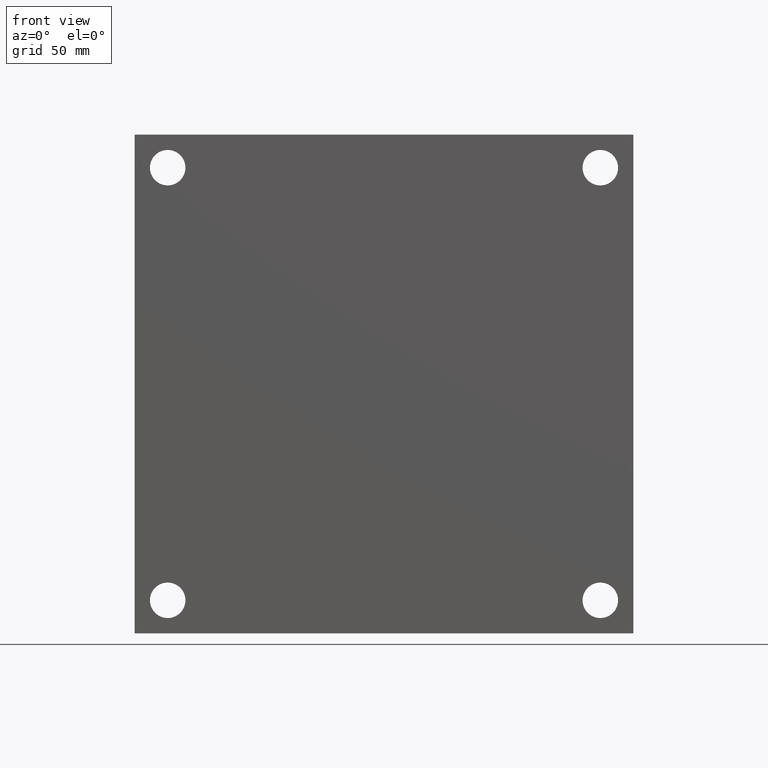
[diagram: clean part render]
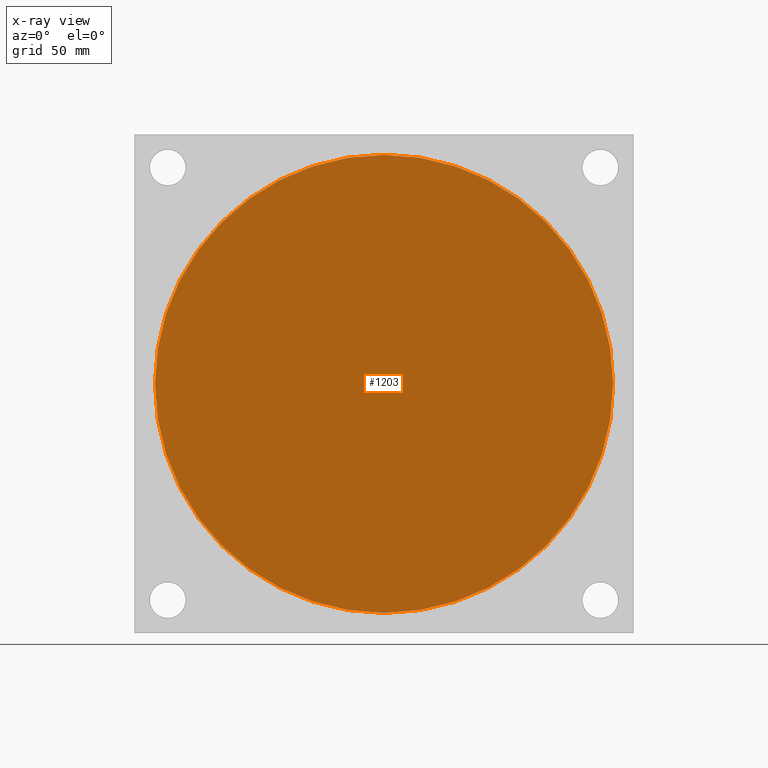
[diagram: x-ray — body ghosted, one internal face saturated and labeled with its STEP entity id]
A machine part, front view, then the same camera in x-ray: the body is ghosted and one INTERNAL B-rep face — a face not visible from any outside direction — is saturated and labeled: STEP entity #1203.
In plain terms, the highlighted planar face has unit normal (0, 1, 0).
Its self-contained STEP definition (entity closure, byte-faithful):
#101 = CIRCLE ( 'NONE', #1091, 5.625000000000000000 ) ;
#134 = EDGE_CURVE ( 'NONE', #258, #1445, #1065, .T. ) ;
#214 = CARTESIAN_POINT ( 'NONE',  ( -1.231999913475563700E-016, 2.955000000000001800, 0.0000000000000000000 ) ) ;
#258 = VERTEX_POINT ( 'NONE', #1572 ) ;
#304 = CARTESIAN_POINT ( 'NONE',  ( -5.625000000000000000, 2.955000000000002700, 6.888638245203861900E-016 ) ) ;
#330 = FACE_OUTER_BOUND ( 'NONE', #856, .T. ) ;
#405 = ORIENTED_EDGE ( 'NONE', *, *, #134, .F. ) ;
#437 = AXIS2_PLACEMENT_3D ( 'NONE', #894, #1227, #1116 ) ;
#454 = AXIS2_PLACEMENT_3D ( 'NONE', #214, #1439, #1178 ) ;
#631 = PLANE ( 'NONE',  #437 ) ;
#856 = EDGE_LOOP ( 'NONE', ( #405, #1321 ) ) ;
#894 = CARTESIAN_POINT ( 'NONE',  ( 5.625000000000000000, 2.955000000000000100, 0.0000000000000000000 ) ) ;
#1065 = CIRCLE ( 'NONE', #454, 5.625000000000000000 ) ;
#1091 = AXIS2_PLACEMENT_3D ( 'NONE', #1130, #1477, #1242 ) ;
#1116 = DIRECTION ( 'NONE',  ( -1.000000000000000000, 2.258269631761038600E-016, 0.0000000000000000000 ) ) ;
#1130 = CARTESIAN_POINT ( 'NONE',  ( -1.231999913475563700E-016, 2.955000000000001800, 0.0000000000000000000 ) ) ;
#1168 = EDGE_CURVE ( 'NONE', #1445, #258, #101, .T. ) ;
#1178 = DIRECTION ( 'NONE',  ( 1.000000000000000000, -1.942647462161253800E-016, 0.0000000000000000000 ) ) ;
#1203 = ADVANCED_FACE ( 'NONE', ( #330 ), #631, .T. ) ;
#1227 = DIRECTION ( 'NONE',  ( 2.258269631761038600E-016, 1.000000000000000000, 0.0000000000000000000 ) ) ;
#1242 = DIRECTION ( 'NONE',  ( 1.000000000000000000, -1.942647462161253800E-016, 0.0000000000000000000 ) ) ;
#1321 = ORIENTED_EDGE ( 'NONE', *, *, #1168, .F. ) ;
#1439 = DIRECTION ( 'NONE',  ( -2.258269631761038600E-016, -1.000000000000000000, -0.0000000000000000000 ) ) ;
#1445 = VERTEX_POINT ( 'NONE', #304 ) ;
#1477 = DIRECTION ( 'NONE',  ( -2.258269631761038600E-016, -1.000000000000000000, -0.0000000000000000000 ) ) ;
#1572 = CARTESIAN_POINT ( 'NONE',  ( 5.625000000000000000, 2.955000000000000500, 0.0000000000000000000 ) ) ;